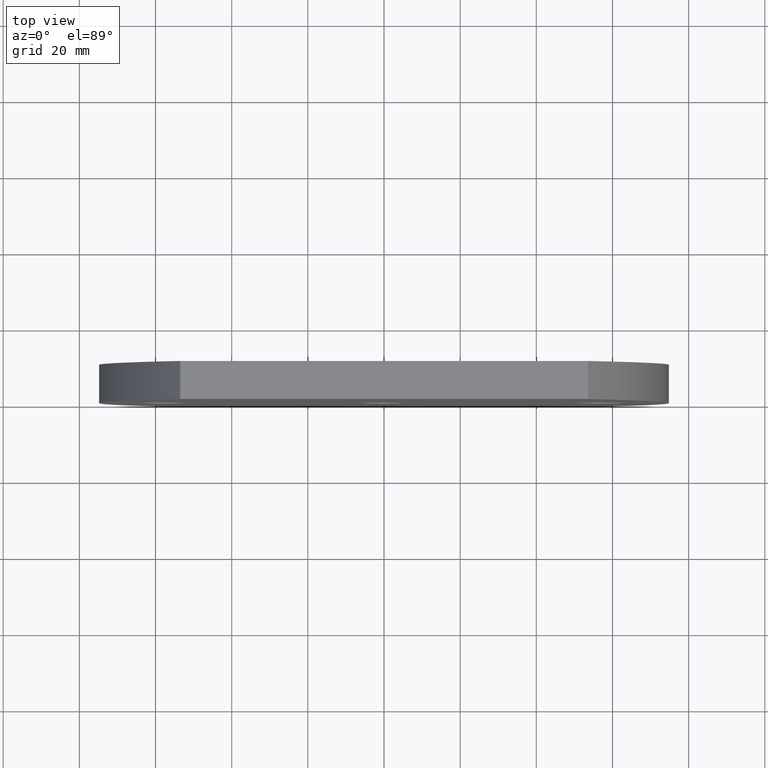
[diagram: clean part render]
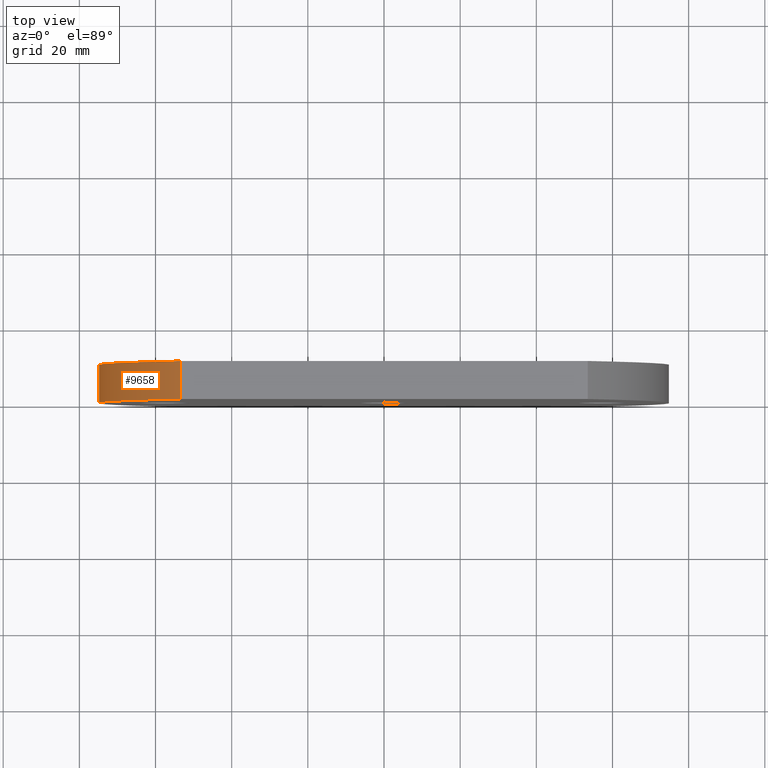
[diagram: same view with one face highlighted and labeled with its STEP entity id]
A machine part, top view. The second image highlights one B-rep face of the part: STEP entity #9658.
In plain terms, the highlighted cylindrical surface (partial cylindrical patch) has radius 94.4709 mm, axis along (-0, -1, -0).
Its self-contained STEP definition (entity closure, byte-faithful):
#187 = EDGE_CURVE ( 'NONE', #9590, #3987, #5770, .T. ) ;
#730 = DIRECTION ( 'NONE',  ( -0.0000000000000000000, -1.000000000000000000, -0.0000000000000000000 ) ) ;
#1230 = CARTESIAN_POINT ( 'NONE',  ( -53.49999999999995000, 10.00000000000000000, -60.00000000000004300 ) ) ;
#1328 = CARTESIAN_POINT ( 'NONE',  ( 19.47093023255811100, 10.00000000000000000, 0.0000000000000000000 ) ) ;
#1975 = VECTOR ( 'NONE', #3223, 1000.000000000000000 ) ;
#2405 = FACE_OUTER_BOUND ( 'NONE', #4205, .T. ) ;
#2938 = CIRCLE ( 'NONE', #6375, 94.47093023255810400 ) ;
#3223 = DIRECTION ( 'NONE',  ( -0.0000000000000000000, -1.000000000000000000, -0.0000000000000000000 ) ) ;
#3252 = AXIS2_PLACEMENT_3D ( 'NONE', #8416, #3744, #6002 ) ;
#3266 = CYLINDRICAL_SURFACE ( 'NONE', #6968, 94.47093023255810400 ) ;
#3298 = CIRCLE ( 'NONE', #3252, 94.47093023255810400 ) ;
#3441 = VERTEX_POINT ( 'NONE', #6139 ) ;
#3744 = DIRECTION ( 'NONE',  ( 0.0000000000000000000, 1.000000000000000000, 0.0000000000000000000 ) ) ;
#3809 = CARTESIAN_POINT ( 'NONE',  ( 19.47093023255811100, 10.00000000000000000, 0.0000000000000000000 ) ) ;
#3932 = ORIENTED_EDGE ( 'NONE', *, *, #5290, .F. ) ;
#3987 = VERTEX_POINT ( 'NONE', #8680 ) ;
#4151 = CARTESIAN_POINT ( 'NONE',  ( -53.49999999999999300, 10.00000000000000000, 60.00000000000000000 ) ) ;
#4205 = EDGE_LOOP ( 'NONE', ( #5830, #3932, #8742, #5228 ) ) ;
#5228 = ORIENTED_EDGE ( 'NONE', *, *, #187, .T. ) ;
#5290 = EDGE_CURVE ( 'NONE', #3441, #8128, #8918, .T. ) ;
#5770 = LINE ( 'NONE', #10060, #6501 ) ;
#5830 = ORIENTED_EDGE ( 'NONE', *, *, #7859, .T. ) ;
#6002 = DIRECTION ( 'NONE',  ( 0.0000000000000000000, 0.0000000000000000000, 1.000000000000000000 ) ) ;
#6127 = DIRECTION ( 'NONE',  ( 0.0000000000000000000, 0.0000000000000000000, 1.000000000000000000 ) ) ;
#6139 = CARTESIAN_POINT ( 'NONE',  ( -53.49999999999999300, 10.00000000000000000, 60.00000000000000000 ) ) ;
#6375 = AXIS2_PLACEMENT_3D ( 'NONE', #3809, #8450, #6127 ) ;
#6428 = CARTESIAN_POINT ( 'NONE',  ( -53.49999999999999300, 0.0000000000000000000, 60.00000000000000000 ) ) ;
#6501 = VECTOR ( 'NONE', #730, 1000.000000000000000 ) ;
#6819 = DIRECTION ( 'NONE',  ( -0.0000000000000000000, -1.000000000000000000, -0.0000000000000000000 ) ) ;
#6968 = AXIS2_PLACEMENT_3D ( 'NONE', #1328, #6819, #9899 ) ;
#7859 = EDGE_CURVE ( 'NONE', #3987, #8128, #3298, .T. ) ;
#7989 = EDGE_CURVE ( 'NONE', #9590, #3441, #2938, .T. ) ;
#8128 = VERTEX_POINT ( 'NONE', #6428 ) ;
#8416 = CARTESIAN_POINT ( 'NONE',  ( 19.47093023255811100, 0.0000000000000000000, 0.0000000000000000000 ) ) ;
#8450 = DIRECTION ( 'NONE',  ( 0.0000000000000000000, 1.000000000000000000, 0.0000000000000000000 ) ) ;
#8680 = CARTESIAN_POINT ( 'NONE',  ( -53.49999999999995000, 0.0000000000000000000, -60.00000000000004300 ) ) ;
#8742 = ORIENTED_EDGE ( 'NONE', *, *, #7989, .F. ) ;
#8918 = LINE ( 'NONE', #4151, #1975 ) ;
#9590 = VERTEX_POINT ( 'NONE', #1230 ) ;
#9658 = ADVANCED_FACE ( 'NONE', ( #2405 ), #3266, .T. ) ;
#9899 = DIRECTION ( 'NONE',  ( 0.0000000000000000000, 0.0000000000000000000, -1.000000000000000000 ) ) ;
#10060 = CARTESIAN_POINT ( 'NONE',  ( -53.49999999999995000, 10.00000000000000000, -60.00000000000004300 ) ) ;